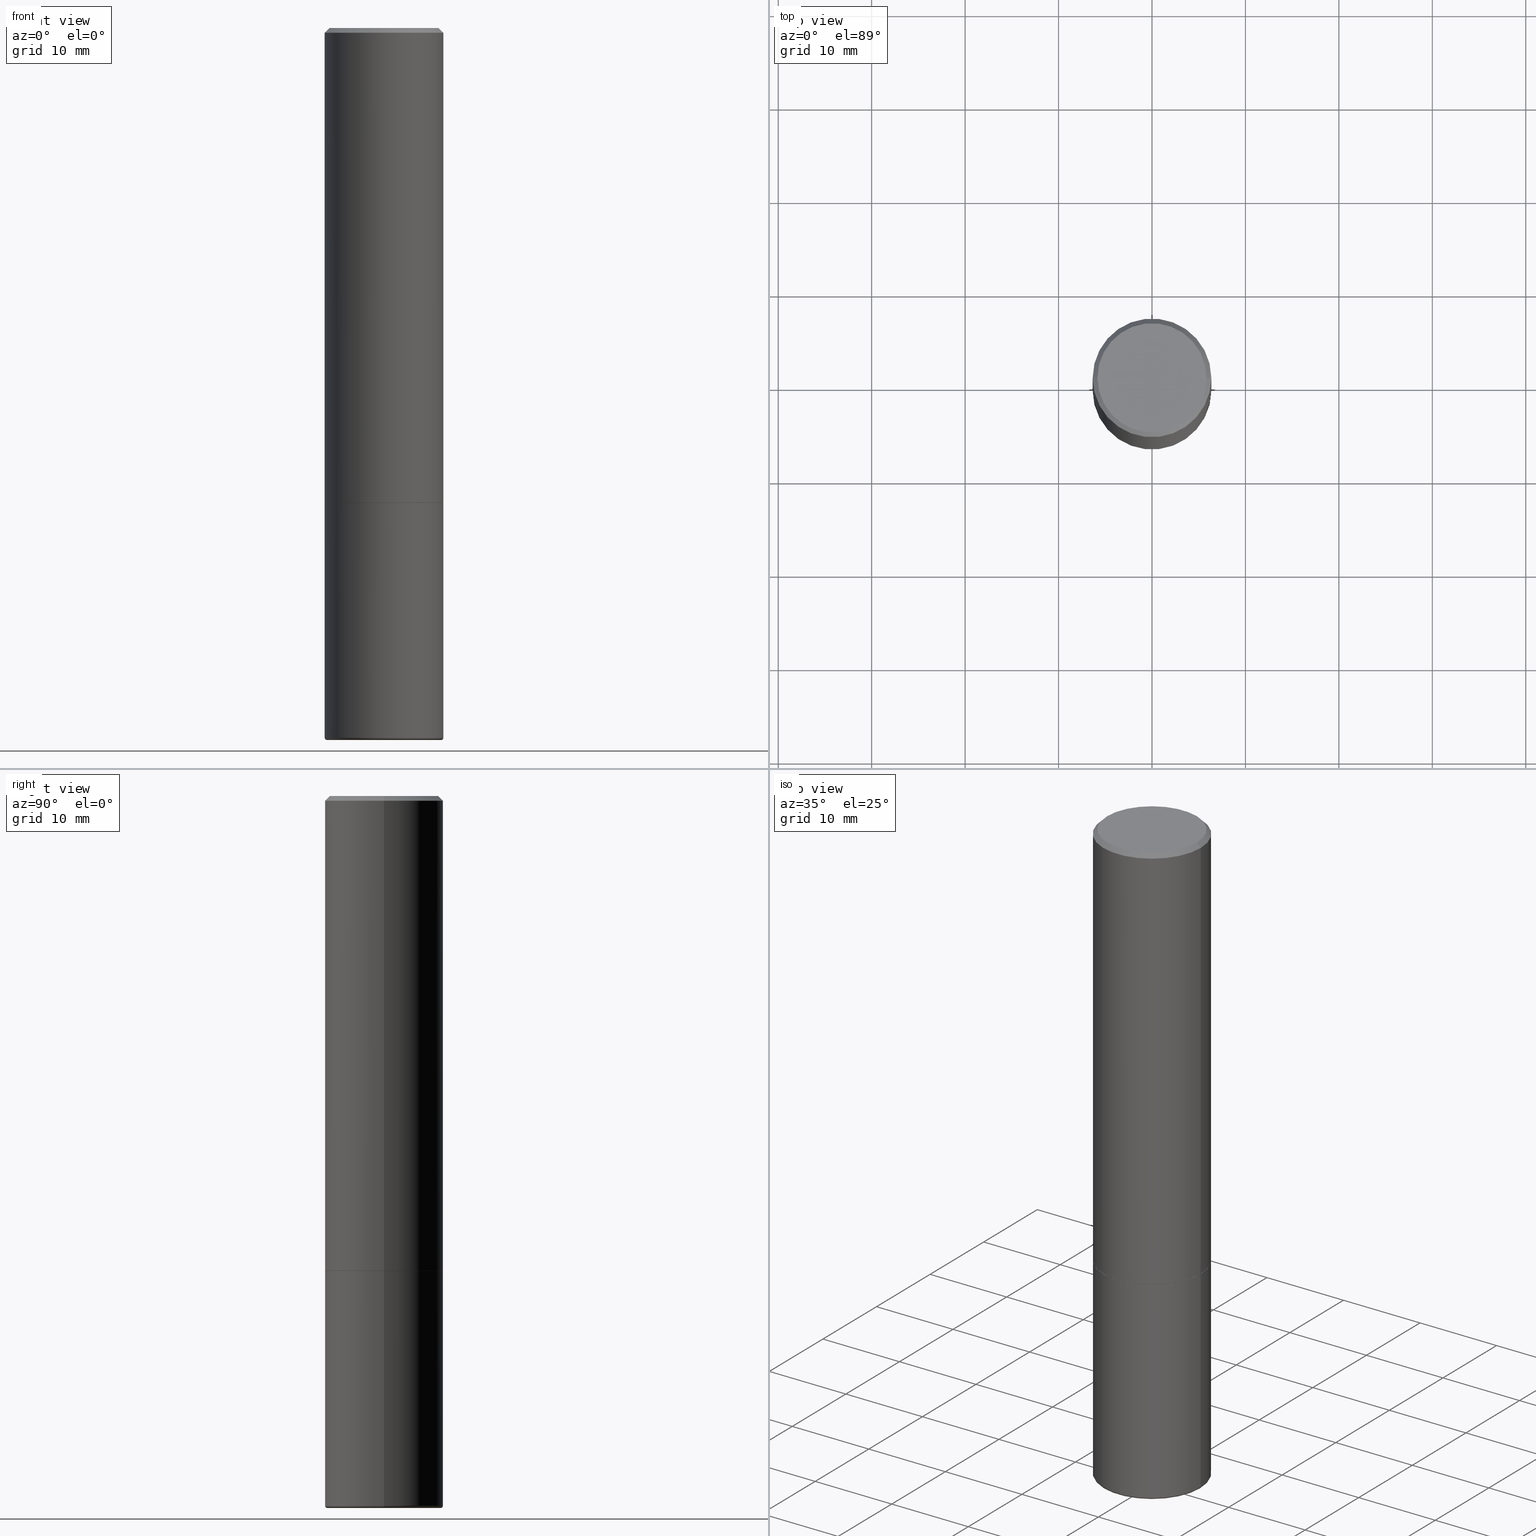
[diagram: canonical four-view strip — front | top / right | iso, engineering-drawing reading convention]
A machine part, canonical four-view strip (front | top / right | iso — engineering-drawing reading convention). The complete STEP part file that produces these views, byte-faithful:
ISO-10303-21;
HEADER;
FILE_DESCRIPTION (( 'STEP AP203' ),
    '1' );
FILE_NAME ('38834.STEP',
    '2024-03-03T15:50:34',
    ( '' ),
    ( '' ),
    'SwSTEP 2.0',
    'SolidWorks 2023',
    '' );
FILE_SCHEMA (( 'CONFIG_CONTROL_DESIGN' ));
ENDSEC;

DATA;
#1 = CC_DESIGN_PERSON_AND_ORGANIZATION_ASSIGNMENT ( #70, #63, ( #343 ) ) ;
#2 = DATE_AND_TIME ( #124, #281 ) ;
#3 = FACE_OUTER_BOUND ( 'NONE', #410, .T. ) ;
#4 = LINE ( 'NONE', #10, #14 ) ;
#5 = VECTOR ( 'NONE', #305, 39.37007874015748143 ) ;
#6 = AXIS2_PLACEMENT_3D ( 'NONE', #161, #290, #418 ) ;
#7 = PERSON_AND_ORGANIZATION ( #232, #409 ) ;
#8 = EDGE_CURVE ( 'NONE', #375, #157, #348, .T. ) ;
#9 = COORDINATED_UNIVERSAL_TIME_OFFSET ( 5, 0, .BEHIND. ) ;
#10 = CARTESIAN_POINT ( 'NONE',  ( -0.2489999999999999991, -5.213711265643642498E-15, -2.000000000000000444 ) ) ;
#11 = CYLINDRICAL_SURFACE ( 'NONE', #384, 0.2500000000000000000 ) ;
#12 = CARTESIAN_POINT ( 'NONE',  ( 0.2500000000000002220, -8.725211865769017202E-15, -1.999000000000000110 ) ) ;
#13 = DIRECTION ( 'NONE',  ( 1.000000000000000000, -6.982962677686267499E-15, 4.876176775795936353E-29 ) ) ;
#14 = VECTOR ( 'NONE', #349, 39.37007874015748143 ) ;
#15 = CARTESIAN_POINT ( 'NONE',  ( -0.2499999999999998890, -8.663172363740755817E-15, -2.990000000000000213 ) ) ;
#16 = EDGE_CURVE ( 'NONE', #192, #375, #76, .T. ) ;
#17 = DIRECTION ( 'NONE',  ( -2.445468806185136597E-29, 3.491481338843145583E-15, 1.000000000000000000 ) ) ;
#18 = CC_DESIGN_APPROVAL ( #368, ( #186 ) ) ;
#19 = CARTESIAN_POINT ( 'NONE',  ( -1.148236555768741665E-45, 1.639377487418492057E-31, 4.695363739110452099E-17 ) ) ;
#20 = ORIENTED_EDGE ( 'NONE', *, *, #397, .T. ) ;
#21 = DIRECTION ( 'NONE',  ( -2.445468806185136597E-29, 3.491481338843145583E-15, 1.000000000000000000 ) ) ;
#22 = ORIENTED_EDGE ( 'NONE', *, *, #330, .T. ) ;
#23 = EDGE_CURVE ( 'NONE', #229, #258, #369, .T. ) ;
#24 = DIRECTION ( 'NONE',  ( -2.445468806185136597E-29, 3.491481338843145583E-15, 1.000000000000000000 ) ) ;
#25 = AXIS2_PLACEMENT_3D ( 'NONE', #354, #413, #193 ) ;
#26 = ORIENTED_EDGE ( 'NONE', *, *, #113, .T. ) ;
#27 = ORIENTED_EDGE ( 'NONE', *, *, #118, .F. ) ;
#28 = VERTEX_POINT ( 'NONE', #170 ) ;
#29 = ORIENTED_EDGE ( 'NONE', *, *, #330, .F. ) ;
#30 = EDGE_CURVE ( 'NONE', #229, #54, #101, .T. ) ;
#31 = VECTOR ( 'NONE', #238, 39.37007874015748143 ) ;
#32 = AXIS2_PLACEMENT_3D ( 'NONE', #138, #143, #236 ) ;
#33 = DIRECTION ( 'NONE',  ( 2.438088387897960049E-29, -3.491481338843145188E-15, -1.000000000000000000 ) ) ;
#34 = DIRECTION ( 'NONE',  ( 1.000000000000000000, -6.982962677686266711E-15, 0.000000000000000000 ) ) ;
#35 = EDGE_CURVE ( 'NONE', #288, #168, #4, .T. ) ;
#36 = APPROVAL_DATE_TIME ( #100, #91 ) ;
#37 = DIRECTION ( 'NONE',  ( -2.438088387897960049E-29, 3.491481338843145188E-15, 1.000000000000000000 ) ) ;
#38 = CONICAL_SURFACE ( 'NONE', #333, 0.2500000000000000000, 0.7853981633974472798 ) ;
#39 = CC_DESIGN_APPROVAL ( #91, ( #343 ) ) ;
#40 = CARTESIAN_POINT ( 'NONE',  ( -0.2500000000000001110, 1.776356839400251254E-15, -1.229733772563727146E-29 ) ) ;
#41 = DIRECTION ( 'NONE',  ( -2.445468806185136597E-29, 3.491481338843145583E-15, 1.000000000000000000 ) ) ;
#42 = DIRECTION ( 'NONE',  ( -2.445468806185136597E-29, 3.491481338843145583E-15, 1.000000000000000000 ) ) ;
#43 = EDGE_CURVE ( 'NONE', #54, #225, #391, .T. ) ;
#44 = AXIS2_PLACEMENT_3D ( 'NONE', #199, #363, #337 ) ;
#45 = APPROVAL_PERSON_ORGANIZATION ( #389, #368, #292 ) ;
#46 =( CONVERSION_BASED_UNIT ( 'INCH', #77 ) LENGTH_UNIT ( ) NAMED_UNIT ( #166 ) );
#47 = DIRECTION ( 'NONE',  ( -2.445468806185136597E-29, 3.491481338843145583E-15, 1.000000000000000000 ) ) ;
#48 = DIRECTION ( 'NONE',  ( 1.000000000000000000, -6.982962677686266711E-15, 0.000000000000000000 ) ) ;
#49 = CARTESIAN_POINT ( 'NONE',  ( 4.890937612370287172E-31, -6.982962677686310098E-17, -0.02000000000000005593 ) ) ;
#50 = CARTESIAN_POINT ( 'NONE',  ( 0.000000000000000000, 0.000000000000000000, 0.000000000000000000 ) ) ;
#51 = AXIS2_PLACEMENT_3D ( 'NONE', #201, #327, #244 ) ;
#52 = DIRECTION ( 'NONE',  ( -2.445468806185136877E-29, 3.491481338843145188E-15, 1.000000000000000000 ) ) ;
#53 = EDGE_CURVE ( 'NONE', #28, #157, #318, .T. ) ;
#54 = VERTEX_POINT ( 'NONE', #194 ) ;
#55 = EDGE_LOOP ( 'NONE', ( #116, #332 ) ) ;
#56 = AXIS2_PLACEMENT_3D ( 'NONE', #374, #115, #312 ) ;
#57 = VERTEX_POINT ( 'NONE', #12 ) ;
#58 = DIRECTION ( 'NONE',  ( 1.000000000000000000, -6.982962677686266711E-15, 0.000000000000000000 ) ) ;
#59 = ORIENTED_EDGE ( 'NONE', *, *, #277, .T. ) ;
#60 = APPROVAL_STATUS ( 'not_yet_approved' ) ;
#61 = EDGE_LOOP ( 'NONE', ( #285, #224, #22, #381 ) ) ;
#62 = PLANE ( 'NONE',  #275 ) ;
#63 = PERSON_AND_ORGANIZATION_ROLE ( 'classification_officer' ) ;
#64 = CIRCLE ( 'NONE', #151, 0.2500000000000002220 ) ;
#65 = CALENDAR_DATE ( 2024, 3, 3 ) ;
#66 = LINE ( 'NONE', #239, #96 ) ;
#67 = ORIENTED_EDGE ( 'NONE', *, *, #35, .F. ) ;
#68 = EDGE_CURVE ( 'NONE', #168, #225, #94, .T. ) ;
#69 = DIRECTION ( 'NONE',  ( 2.445468806185136597E-29, -3.491481338843145583E-15, -1.000000000000000000 ) ) ;
#70 = PERSON_AND_ORGANIZATION ( #232, #409 ) ;
#71 = AXIS2_PLACEMENT_3D ( 'NONE', #49, #141, #73 ) ;
#72 = APPROVAL_PERSON_ORGANIZATION ( #7, #91, #134 ) ;
#73 = DIRECTION ( 'NONE',  ( 1.000000000000000000, -6.982962677686266711E-15, 0.000000000000000000 ) ) ;
#74 = CC_DESIGN_PERSON_AND_ORGANIZATION_ASSIGNMENT ( #334, #362, ( #139 ) ) ;
#75 = DIRECTION ( 'NONE',  ( 1.000000000000000000, -6.982962677686269077E-15, 4.883557194083114022E-29 ) ) ;
#76 = CIRCLE ( 'NONE', #51, 0.009999999999999790307 ) ;
#77 = LENGTH_MEASURE_WITH_UNIT ( LENGTH_MEASURE( 0.02539999999999999897 ), #248 );
#78 = ADVANCED_FACE ( 'NONE', ( #3 ), #307, .T. ) ;
#79 = DIRECTION ( 'NONE',  ( 1.000000000000000000, -6.982962677686266711E-15, 0.000000000000000000 ) ) ;
#80 = LOCAL_TIME ( 10, 50, 34.00000000000000000, #169 ) ;
#81 = UNCERTAINTY_MEASURE_WITH_UNIT (LENGTH_MEASURE( 1.000000000000000082E-05 ), #46, 'distance_accuracy_value', 'NONE');
#82 = ORIENTED_EDGE ( 'NONE', *, *, #155, .T. ) ;
#83 = CARTESIAN_POINT ( 'NONE',  ( -1.148236555768741665E-45, 1.639377487418492057E-31, 4.695363739110452099E-17 ) ) ;
#84 = FACE_OUTER_BOUND ( 'NONE', #351, .T. ) ;
#85 = ADVANCED_FACE ( 'NONE', ( #228 ), #176, .F. ) ;
#86 = MECHANICAL_CONTEXT ( 'NONE', #372, 'mechanical' ) ;
#87 = ORIENTED_EDGE ( 'NONE', *, *, #189, .F. ) ;
#88 = DIRECTION ( 'NONE',  ( 0.7071067811866078578, -2.468850131082888544E-15, 0.7071067811864871766 ) ) ;
#89 = PERSON_AND_ORGANIZATION_ROLE ( 'design_owner' ) ;
#90 = DIRECTION ( 'NONE',  ( -2.445468806185136597E-29, 3.491481338843145583E-15, 1.000000000000000000 ) ) ;
#91 = APPROVAL ( #60, 'UNSPECIFIED' ) ;
#92 = DIRECTION ( 'NONE',  ( -2.445468806185136597E-29, 3.491481338843145583E-15, 1.000000000000000000 ) ) ;
#93 = DIRECTION ( 'NONE',  ( 1.000000000000000000, -6.982962677686262766E-15, 0.000000000000000000 ) ) ;
#94 = LINE ( 'NONE', #40, #5 ) ;
#95 = ORIENTED_EDGE ( 'NONE', *, *, #53, .F. ) ;
#96 = VECTOR ( 'NONE', #174, 39.37007874015748143 ) ;
#97 = APPROVAL_PERSON_ORGANIZATION ( #291, #306, #230 ) ;
#98 = APPLICATION_CONTEXT ( 'configuration controlled 3d designs of mechanical parts and assemblies' ) ;
#99 = DATE_AND_TIME ( #65, #319 ) ;
#100 = DATE_AND_TIME ( #395, #133 ) ;
#101 = LINE ( 'NONE', #262, #31 ) ;
#102 = COORDINATED_UNIVERSAL_TIME_OFFSET ( 5, 0, .BEHIND. ) ;
#103 = PLANE ( 'NONE',  #361 ) ;
#104 = AXIS2_PLACEMENT_3D ( 'NONE', #245, #47, #79 ) ;
#105 = ADVANCED_FACE ( 'NONE', ( #331 ), #103, .F. ) ;
#106 = DIRECTION ( 'NONE',  ( 2.438088387897960049E-29, -3.491481338843145188E-15, -1.000000000000000000 ) ) ;
#107 = FACE_OUTER_BOUND ( 'NONE', #386, .T. ) ;
#108 = EDGE_CURVE ( 'NONE', #375, #317, #310, .T. ) ;
#109 = DIRECTION ( 'NONE',  ( -2.445468806185136597E-29, 3.491481338843145583E-15, 1.000000000000000000 ) ) ;
#110 = VECTOR ( 'NONE', #159, 39.37007874015748143 ) ;
#111 = DIRECTION ( 'NONE',  ( -2.445468806185136877E-29, 3.491481338843145188E-15, 1.000000000000000000 ) ) ;
#112 = AXIS2_PLACEMENT_3D ( 'NONE', #328, #69, #269 ) ;
#113 = EDGE_CURVE ( 'NONE', #258, #225, #66, .T. ) ;
#114 = AXIS2_PLACEMENT_3D ( 'NONE', #408, #153, #13 ) ;
#115 = DIRECTION ( 'NONE',  ( 0.000000000000000000, 0.000000000000000000, 1.000000000000000000 ) ) ;
#116 = ORIENTED_EDGE ( 'NONE', *, *, #189, .T. ) ;
#117 = CARTESIAN_POINT ( 'NONE',  ( 4.890937612370273754E-29, -6.982962677686291954E-15, -2.000000000000000444 ) ) ;
#118 = EDGE_CURVE ( 'NONE', #303, #317, #246, .T. ) ;
#119 = MANIFOLD_SOLID_BREP ( 'Body-Move/Copy2[2]', #197 ) ;
#120 = CARTESIAN_POINT ( 'NONE',  ( -0.2400000000000000466, -8.716156907222976683E-15, -2.999999999999999556 ) ) ;
#121 = AXIS2_PLACEMENT_3D ( 'NONE', #313, #21, #339 ) ;
#122 = EDGE_LOOP ( 'NONE', ( #253, #160 ) ) ;
#123 = ORIENTED_EDGE ( 'NONE', *, *, #234, .T. ) ;
#124 = CALENDAR_DATE ( 2024, 3, 3 ) ;
#125 = EDGE_LOOP ( 'NONE', ( #417, #87, #26, #82 ) ) ;
#126 = EDGE_LOOP ( 'NONE', ( #355, #280, #286, #287 ) ) ;
#127 = APPROVAL_DATE_TIME ( #2, #368 ) ;
#128 = DIRECTION ( 'NONE',  ( -1.000000000000000000, 6.982962677686266711E-15, 0.000000000000000000 ) ) ;
#129 = PERSON_AND_ORGANIZATION ( #232, #409 ) ;
#130 = ADVANCED_FACE ( 'NONE', ( #336 ), #38, .T. ) ;
#131 = CARTESIAN_POINT ( 'NONE',  ( 4.890937612370273754E-29, -6.982962677686291954E-15, -2.000000000000000444 ) ) ;
#132 = AXIS2_PLACEMENT_3D ( 'NONE', #117, #90, #223 ) ;
#133 = LOCAL_TIME ( 10, 50, 34.00000000000000000, #261 ) ;
#134 = APPROVAL_ROLE ( '' ) ;
#135 = MANIFOLD_SOLID_BREP ( 'Body-Move/Copy2[1]', #190 ) ;
#136 = CALENDAR_DATE ( 2024, 3, 3 ) ;
#137 = ADVANCED_FACE ( 'NONE', ( #293 ), #11, .T. ) ;
#138 = CARTESIAN_POINT ( 'NONE',  ( 4.890937612370273754E-29, -6.982962677686291954E-15, -2.000000000000000444 ) ) ;
#139 = PRODUCT_DEFINITION_FORMATION_WITH_SPECIFIED_SOURCE ( 'ANY', '', #235, .NOT_KNOWN. ) ;
#140 = ADVANCED_FACE ( 'NONE', ( #390 ), #256, .T. ) ;
#141 = DIRECTION ( 'NONE',  ( -2.445468806185136597E-29, 3.491481338843145583E-15, 1.000000000000000000 ) ) ;
#142 = CARTESIAN_POINT ( 'NONE',  ( 1.210550456377282398E-28, -3.644824032368776532E-15, -2.999999999999999556 ) ) ;
#143 = DIRECTION ( 'NONE',  ( 2.438088387897960049E-29, -3.491481338843145188E-15, -1.000000000000000000 ) ) ;
#144 = VECTOR ( 'NONE', #111, 39.37007874015748143 ) ;
#145 = DIRECTION ( 'NONE',  ( -2.445468806185136597E-29, 3.491481338843145583E-15, 1.000000000000000000 ) ) ;
#146 = CARTESIAN_POINT ( 'NONE',  ( 0.2500000000000001110, -1.745740669421567664E-15, 1.219044193948984649E-29 ) ) ;
#147 = CYLINDRICAL_SURFACE ( 'NONE', #114, 0.2500000000000001110 ) ;
#148 = EDGE_CURVE ( 'NONE', #57, #168, #207, .T. ) ;
#149 = LINE ( 'NONE', #158, #400 ) ;
#150 = ORIENTED_EDGE ( 'NONE', *, *, #364, .T. ) ;
#151 = AXIS2_PLACEMENT_3D ( 'NONE', #252, #218, #322 ) ;
#152 = DIRECTION ( 'NONE',  ( 1.000000000000000000, -6.982962677686266711E-15, 0.000000000000000000 ) ) ;
#153 = DIRECTION ( 'NONE',  ( -2.445468806185136597E-29, 3.491481338843145583E-15, 1.000000000000000000 ) ) ;
#154 = ORIENTED_EDGE ( 'NONE', *, *, #108, .F. ) ;
#155 = EDGE_CURVE ( 'NONE', #225, #54, #392, .T. ) ;
#156 = DIRECTION ( 'NONE',  ( -2.445468806185136597E-29, 3.491481338843145583E-15, 1.000000000000000000 ) ) ;
#157 = VERTEX_POINT ( 'NONE', #402 ) ;
#158 = CARTESIAN_POINT ( 'NONE',  ( 0.2489999999999999991, -8.721720384430172617E-15, -2.000000000000000444 ) ) ;
#159 = DIRECTION ( 'NONE',  ( -2.445468806185136877E-29, 3.491481338843145188E-15, 1.000000000000000000 ) ) ;
#160 = ORIENTED_EDGE ( 'NONE', *, *, #364, .F. ) ;
#161 = CARTESIAN_POINT ( 'NONE',  ( 7.311951730493558245E-29, -1.043952920314100628E-14, -2.990000000000000213 ) ) ;
#162 = CONICAL_SURFACE ( 'NONE', #104, 0.2489999999999999991, 0.7853981633975336552 ) ;
#163 = APPLICATION_PROTOCOL_DEFINITION ( 'international standard', 'config_control_design', 1994, #98 ) ;
#164 = CARTESIAN_POINT ( 'NONE',  ( 4.890937612370287172E-31, -6.982962677686310098E-17, -0.02000000000000005593 ) ) ;
#165 = ADVANCED_FACE ( 'NONE', ( #107 ), #162, .T. ) ;
#166 = DIMENSIONAL_EXPONENTS ( 1.000000000000000000, 0.000000000000000000, 0.000000000000000000, 0.000000000000000000, 0.000000000000000000, 0.000000000000000000, 0.000000000000000000 ) ;
#167 = CARTESIAN_POINT ( 'NONE',  ( 4.888492143564088712E-29, -6.979471196347448158E-15, -1.999000000000000110 ) ) ;
#168 = VERTEX_POINT ( 'NONE', #179 ) ;
#169 = COORDINATED_UNIVERSAL_TIME_OFFSET ( 5, 0, .BEHIND. ) ;
#170 = CARTESIAN_POINT ( 'NONE',  ( 0.2500000000000000000, -8.728703347107858632E-15, -2.000000000000000444 ) ) ;
#171 = AXIS2_PLACEMENT_3D ( 'NONE', #83, #24, #298 ) ;
#172 = CIRCLE ( 'NONE', #324, 0.2489999999999999991 ) ;
#173 = PERSON_AND_ORGANIZATION_ROLE ( 'creator' ) ;
#174 = DIRECTION ( 'NONE',  ( -0.7071067811865467956, 2.468850131082249172E-15, -0.7071067811865482389 ) ) ;
#175 = DIRECTION ( 'NONE',  ( 1.000000000000000000, -6.982962677686266711E-15, 0.000000000000000000 ) ) ;
#176 = PLANE ( 'NONE',  #220 ) ;
#177 = CARTESIAN_POINT ( 'NONE',  ( -0.2500000000000000000, 1.776356839400250465E-15, -1.229733772563726445E-29 ) ) ;
#178 = FACE_OUTER_BOUND ( 'NONE', #61, .T. ) ;
#179 = CARTESIAN_POINT ( 'NONE',  ( -0.2500000000000002220, -1.748293572161901516E-15, -1.999000000000000110 ) ) ;
#180 = DESIGN_CONTEXT ( 'detailed design', #98, 'design' ) ;
#181 = CYLINDRICAL_SURFACE ( 'NONE', #121, 0.2500000000000000000 ) ;
#182 = CIRCLE ( 'NONE', #231, 0.2400000000000000466 ) ;
#183 = PRODUCT_DEFINITION_SHAPE ( 'NONE', 'NONE',  #186 ) ;
#184 = CYLINDRICAL_SURFACE ( 'NONE', #405, 0.2500000000000001110 ) ;
#185 = DIRECTION ( 'NONE',  ( 1.000000000000000000, -6.982962677686268288E-15, 0.000000000000000000 ) ) ;
#186 = PRODUCT_DEFINITION ( 'UNKNOWN', '', #139, #180 ) ;
#187 = ORIENTED_EDGE ( 'NONE', *, *, #16, .T. ) ;
#188 = EDGE_LOOP ( 'NONE', ( #59, #352, #95, #29 ) ) ;
#189 = EDGE_CURVE ( 'NONE', #258, #229, #376, .T. ) ;
#190 = CLOSED_SHELL ( 'NONE', ( #137, #268, #344, #380, #314, #282 ) ) ;
#191 = FACE_OUTER_BOUND ( 'NONE', #126, .T. ) ;
#192 = VERTEX_POINT ( 'NONE', #120 ) ;
#193 = DIRECTION ( 'NONE',  ( 1.000000000000000000, -6.982962677686266711E-15, 0.000000000000000000 ) ) ;
#194 = CARTESIAN_POINT ( 'NONE',  ( 0.2500000000000000000, -1.784954126219746189E-15, -0.02000000000000005593 ) ) ;
#195 = CARTESIAN_POINT ( 'NONE',  ( -0.2299999999999999267, 1.640996229256272519E-15, 4.695363739109317495E-17 ) ) ;
#196 = EDGE_LOOP ( 'NONE', ( #302, #187, #357, #27 ) ) ;
#197 = CLOSED_SHELL ( 'NONE', ( #165, #403, #78, #130, #338, #140, #85, #105 ) ) ;
#198 = APPROVAL_STATUS ( 'not_yet_approved' ) ;
#199 = CARTESIAN_POINT ( 'NONE',  ( 7.311951730493558245E-29, -1.043952920314100628E-14, -2.990000000000000213 ) ) ;
#200 = ORIENTED_EDGE ( 'NONE', *, *, #30, .T. ) ;
#201 = CARTESIAN_POINT ( 'NONE',  ( -0.2399999999999999911, -8.734226637316765899E-15, -2.990000000000000213 ) ) ;
#202 = DATE_TIME_ROLE ( 'classification_date' ) ;
#203 = DIRECTION ( 'NONE',  ( -2.445468806185136597E-29, 3.491481338843145583E-15, 1.000000000000000000 ) ) ;
#204 = CARTESIAN_POINT ( 'NONE',  ( 4.890937612370273754E-29, -6.982962677686291954E-15, -2.000000000000000444 ) ) ;
#205 = AXIS2_PLACEMENT_3D ( 'NONE', #214, #42, #75 ) ;
#206 = DIRECTION ( 'NONE',  ( 1.000000000000000000, -6.982962677686284854E-15, 0.000000000000000000 ) ) ;
#207 = CIRCLE ( 'NONE', #247, 0.2500000000000002220 ) ;
#208 = ORIENTED_EDGE ( 'NONE', *, *, #53, .T. ) ;
#209 = TOROIDAL_SURFACE ( 'NONE', #205, 0.2399999999999999911, 0.009999999999999807654 ) ;
#210 = FACE_OUTER_BOUND ( 'NONE', #250, .T. ) ;
#211 = LINE ( 'NONE', #222, #110 ) ;
#212 = EDGE_CURVE ( 'NONE', #192, #303, #182, .T. ) ;
#213 = LOCAL_TIME ( 10, 50, 34.00000000000000000, #365 ) ;
#214 = CARTESIAN_POINT ( 'NONE',  ( 7.311951730493558245E-29, -1.043952920314100628E-14, -2.990000000000000213 ) ) ;
#215 = EDGE_CURVE ( 'NONE', #303, #192, #370, .T. ) ;
#216 = EDGE_LOOP ( 'NONE', ( #67, #150, #123, #251 ) ) ;
#217 = CC_DESIGN_PERSON_AND_ORGANIZATION_ASSIGNMENT ( #297, #398, ( #139 ) ) ;
#218 = DIRECTION ( 'NONE',  ( -2.445468806185136597E-29, 3.491481338843145583E-15, 1.000000000000000000 ) ) ;
#219 = ORIENTED_EDGE ( 'NONE', *, *, #212, .F. ) ;
#220 = AXIS2_PLACEMENT_3D ( 'NONE', #204, #37, #325 ) ;
#221 = CARTESIAN_POINT ( 'NONE',  ( 4.890937612370273754E-29, -6.982962677686291954E-15, -2.000000000000000444 ) ) ;
#222 = CARTESIAN_POINT ( 'NONE',  ( 0.2500000000000000000, -1.745740669421566678E-15, 1.219044193948983948E-29 ) ) ;
#223 = DIRECTION ( 'NONE',  ( 1.000000000000000000, -6.982962677686266711E-15, 0.000000000000000000 ) ) ;
#224 = ORIENTED_EDGE ( 'NONE', *, *, #108, .T. ) ;
#225 = VERTEX_POINT ( 'NONE', #382 ) ;
#226 = FACE_OUTER_BOUND ( 'NONE', #416, .T. ) ;
#227 = EDGE_CURVE ( 'NONE', #168, #57, #64, .T. ) ;
#228 = FACE_OUTER_BOUND ( 'NONE', #122, .T. ) ;
#229 = VERTEX_POINT ( 'NONE', #350 ) ;
#230 = APPROVAL_ROLE ( '' ) ;
#231 = AXIS2_PLACEMENT_3D ( 'NONE', #346, #92, #152 ) ;
#232 = PERSON ( 'UNSPECIFIED', 'UNSPECIFIED', 'UNSPECIFIED', ('UNSPECIFIED'), ('UNSPECIFIED'), ('UNSPECIFIED') ) ;
#233 = CARTESIAN_POINT ( 'NONE',  ( 1.606081415867840870E-15, 0.2299999999999999267, -7.795638892383710465E-16 ) ) ;
#234 = EDGE_CURVE ( 'NONE', #378, #57, #149, .T. ) ;
#235 = PRODUCT ( '38834', '38834', '', ( #86 ) ) ;
#236 = DIRECTION ( 'NONE',  ( -1.000000000000000000, 6.982962677686265922E-15, -4.876176775795935793E-29 ) ) ;
#237 = CALENDAR_DATE ( 2024, 3, 3 ) ;
#238 = DIRECTION ( 'NONE',  ( 0.7071067811865467956, -7.319954787623254468E-15, -0.7071067811865482389 ) ) ;
#239 = CARTESIAN_POINT ( 'NONE',  ( -0.2500000000000000000, 1.675911042644703577E-15, -0.02000000000000005593 ) ) ;
#240 =( NAMED_UNIT ( * ) SI_UNIT ( $, .STERADIAN. ) SOLID_ANGLE_UNIT ( ) );
#241 = ORIENTED_EDGE ( 'NONE', *, *, #113, .F. ) ;
#242 =( GEOMETRIC_REPRESENTATION_CONTEXT ( 3 ) GLOBAL_UNCERTAINTY_ASSIGNED_CONTEXT ( ( #81 ) ) GLOBAL_UNIT_ASSIGNED_CONTEXT ( ( #46, #315, #240 ) ) REPRESENTATION_CONTEXT ( 'NONE', 'WORKASPACE' ) );
#243 = EDGE_CURVE ( 'NONE', #157, #28, #289, .T. ) ;
#244 = DIRECTION ( 'NONE',  ( -1.000000000000000000, 7.105427357600978193E-15, 0.000000000000000000 ) ) ;
#245 = CARTESIAN_POINT ( 'NONE',  ( 4.890937612370273754E-29, -6.982962677686291954E-15, -2.000000000000000444 ) ) ;
#246 = CIRCLE ( 'NONE', #342, 0.009999999999999790307 ) ;
#247 = AXIS2_PLACEMENT_3D ( 'NONE', #167, #17, #185 ) ;
#248 =( LENGTH_UNIT ( ) NAMED_UNIT ( * ) SI_UNIT ( $, .METRE. ) );
#249 = AXIS2_PLACEMENT_3D ( 'NONE', #19, #145, #311 ) ;
#250 = EDGE_LOOP ( 'NONE', ( #208, #377 ) ) ;
#251 = ORIENTED_EDGE ( 'NONE', *, *, #227, .F. ) ;
#252 = CARTESIAN_POINT ( 'NONE',  ( 4.888492143564088712E-29, -6.979471196347448158E-15, -1.999000000000000110 ) ) ;
#253 = ORIENTED_EDGE ( 'NONE', *, *, #397, .F. ) ;
#254 = DIRECTION ( 'NONE',  ( 1.000000000000000000, -6.982962677686267499E-15, 4.876176775795936353E-29 ) ) ;
#255 = AXIS2_PLACEMENT_3D ( 'NONE', #404, #367, #48 ) ;
#256 = CONICAL_SURFACE ( 'NONE', #366, 0.2489999999999999991, 0.7853981633975336552 ) ;
#257 = LINE ( 'NONE', #146, #144 ) ;
#258 = VERTEX_POINT ( 'NONE', #195 ) ;
#259 = EDGE_CURVE ( 'NONE', #57, #54, #257, .T. ) ;
#260 = FACE_OUTER_BOUND ( 'NONE', #196, .T. ) ;
#261 = COORDINATED_UNIVERSAL_TIME_OFFSET ( 5, 0, .BEHIND. ) ;
#262 = CARTESIAN_POINT ( 'NONE',  ( 0.2500000000000000000, -1.784954126219746189E-15, -0.02000000000000005593 ) ) ;
#263 = ORIENTED_EDGE ( 'NONE', *, *, #43, .T. ) ;
#264 = APPROVAL_STATUS ( 'not_yet_approved' ) ;
#265 = DIRECTION ( 'NONE',  ( 1.000000000000000000, -6.982962677686266711E-15, 4.876176775795935793E-29 ) ) ;
#266 = ORIENTED_EDGE ( 'NONE', *, *, #148, .F. ) ;
#267 = TOROIDAL_SURFACE ( 'NONE', #6, 0.2399999999999999911, 0.009999999999999807654 ) ;
#268 = ADVANCED_FACE ( 'NONE', ( #260 ), #267, .T. ) ;
#269 = DIRECTION ( 'NONE',  ( -1.000000000000000000, 6.982962677686266711E-15, 0.000000000000000000 ) ) ;
#270 = ORIENTED_EDGE ( 'NONE', *, *, #212, .T. ) ;
#271 = CARTESIAN_POINT ( 'NONE',  ( 4.890937612370273754E-29, -6.982962677686291954E-15, -2.000000000000000444 ) ) ;
#272 = DATE_TIME_ROLE ( 'creation_date' ) ;
#273 = CARTESIAN_POINT ( 'NONE',  ( 0.000000000000000000, 0.000000000000000000, 0.000000000000000000 ) ) ;
#274 = AXIS2_PLACEMENT_3D ( 'NONE', #316, #156, #284 ) ;
#275 = AXIS2_PLACEMENT_3D ( 'NONE', #142, #106, #279 ) ;
#276 = PRODUCT_RELATED_PRODUCT_CATEGORY ( 'detail', '', ( #235 ) ) ;
#277 = EDGE_CURVE ( 'NONE', #317, #375, #385, .T. ) ;
#278 = VECTOR ( 'NONE', #52, 39.37007874015748143 ) ;
#279 = DIRECTION ( 'NONE',  ( -1.000000000000000000, 6.982962677686265922E-15, -4.876176775795935793E-29 ) ) ;
#280 = ORIENTED_EDGE ( 'NONE', *, *, #68, .T. ) ;
#281 = LOCAL_TIME ( 10, 50, 34.00000000000000000, #9 ) ;
#282 = ADVANCED_FACE ( 'NONE', ( #226 ), #62, .T. ) ;
#283 = ORIENTED_EDGE ( 'NONE', *, *, #118, .T. ) ;
#284 = DIRECTION ( 'NONE',  ( 1.000000000000000000, -6.982962677686266711E-15, 0.000000000000000000 ) ) ;
#285 = ORIENTED_EDGE ( 'NONE', *, *, #8, .F. ) ;
#286 = ORIENTED_EDGE ( 'NONE', *, *, #43, .F. ) ;
#287 = ORIENTED_EDGE ( 'NONE', *, *, #259, .F. ) ;
#288 = VERTEX_POINT ( 'NONE', #309 ) ;
#289 = CIRCLE ( 'NONE', #308, 0.2500000000000000000 ) ;
#290 = DIRECTION ( 'NONE',  ( -2.445468806185136597E-29, 3.491481338843145583E-15, 1.000000000000000000 ) ) ;
#291 = PERSON_AND_ORGANIZATION ( #232, #409 ) ;
#292 = APPROVAL_ROLE ( '' ) ;
#293 = FACE_OUTER_BOUND ( 'NONE', #188, .T. ) ;
#294 = ORIENTED_EDGE ( 'NONE', *, *, #259, .T. ) ;
#295 = ORIENTED_EDGE ( 'NONE', *, *, #23, .F. ) ;
#296 = CC_DESIGN_DATE_AND_TIME_ASSIGNMENT ( #299, #272, ( #186 ) ) ;
#297 = PERSON_AND_ORGANIZATION ( #232, #409 ) ;
#298 = DIRECTION ( 'NONE',  ( 1.000000000000000000, -6.982962677686267499E-15, 4.875813741439101456E-29 ) ) ;
#299 = DATE_AND_TIME ( #136, #80 ) ;
#300 = CC_DESIGN_SECURITY_CLASSIFICATION ( #343, ( #139 ) ) ;
#301 = DIRECTION ( 'NONE',  ( -1.000000000000000000, 6.982962677686265922E-15, -4.876176775795935793E-29 ) ) ;
#302 = ORIENTED_EDGE ( 'NONE', *, *, #215, .T. ) ;
#303 = VERTEX_POINT ( 'NONE', #371 ) ;
#304 = DIRECTION ( 'NONE',  ( 2.445468806185136597E-29, -3.491481338843145583E-15, -1.000000000000000000 ) ) ;
#305 = DIRECTION ( 'NONE',  ( -2.445468806185136877E-29, 3.491481338843145188E-15, 1.000000000000000000 ) ) ;
#306 = APPROVAL ( #264, 'UNSPECIFIED' ) ;
#307 = CONICAL_SURFACE ( 'NONE', #112, 0.2500000000000000000, 0.7853981633974472798 ) ;
#308 = AXIS2_PLACEMENT_3D ( 'NONE', #221, #415, #58 ) ;
#309 = CARTESIAN_POINT ( 'NONE',  ( -0.2489999999999999991, -5.208412811295419307E-15, -2.000000000000000444 ) ) ;
#310 = CIRCLE ( 'NONE', #44, 0.2500000000000000000 ) ;
#311 = DIRECTION ( 'NONE',  ( 1.000000000000000000, -6.982962677686267499E-15, 4.875813741439101456E-29 ) ) ;
#312 = DIRECTION ( 'NONE',  ( 1.000000000000000000, 0.000000000000000000, 0.000000000000000000 ) ) ;
#313 = CARTESIAN_POINT ( 'NONE',  ( 0.000000000000000000, 0.000000000000000000, 0.000000000000000000 ) ) ;
#314 = ADVANCED_FACE ( 'NONE', ( #406 ), #209, .T. ) ;
#315 =( NAMED_UNIT ( * ) PLANE_ANGLE_UNIT ( ) SI_UNIT ( $, .RADIAN. ) );
#316 = CARTESIAN_POINT ( 'NONE',  ( 4.890937612370287172E-31, -6.982962677686310098E-17, -0.02000000000000005593 ) ) ;
#317 = VERTEX_POINT ( 'NONE', #341 ) ;
#318 = CIRCLE ( 'NONE', #132, 0.2500000000000000000 ) ;
#319 = LOCAL_TIME ( 10, 50, 34.00000000000000000, #102 ) ;
#320 = CARTESIAN_POINT ( 'NONE',  ( 0.2489999999999999991, -8.721720384430172617E-15, -2.000000000000000444 ) ) ;
#321 = ORIENTED_EDGE ( 'NONE', *, *, #215, .F. ) ;
#322 = DIRECTION ( 'NONE',  ( 1.000000000000000000, -6.982962677686268288E-15, 0.000000000000000000 ) ) ;
#323 = SHAPE_DEFINITION_REPRESENTATION ( #183, #401 ) ;
#324 = AXIS2_PLACEMENT_3D ( 'NONE', #271, #41, #175 ) ;
#325 = DIRECTION ( 'NONE',  ( 1.000000000000000000, -6.982962677686265922E-15, 4.876176775795935793E-29 ) ) ;
#326 = ORIENTED_EDGE ( 'NONE', *, *, #35, .T. ) ;
#327 = DIRECTION ( 'NONE',  ( 7.105427357601001859E-15, 1.000000000000000000, -3.491481338843145583E-15 ) ) ;
#328 = CARTESIAN_POINT ( 'NONE',  ( 4.890937612370287172E-31, -6.982962677686310098E-17, -0.02000000000000005593 ) ) ;
#329 = ORIENTED_EDGE ( 'NONE', *, *, #227, .T. ) ;
#330 = EDGE_CURVE ( 'NONE', #317, #28, #211, .T. ) ;
#331 = FACE_OUTER_BOUND ( 'NONE', #55, .T. ) ;
#332 = ORIENTED_EDGE ( 'NONE', *, *, #23, .T. ) ;
#333 = AXIS2_PLACEMENT_3D ( 'NONE', #164, #304, #128 ) ;
#334 = PERSON_AND_ORGANIZATION ( #232, #409 ) ;
#335 = CIRCLE ( 'NONE', #255, 0.2489999999999999991 ) ;
#336 = FACE_OUTER_BOUND ( 'NONE', #125, .T. ) ;
#337 = DIRECTION ( 'NONE',  ( 1.000000000000000000, -6.982962677686262766E-15, 0.000000000000000000 ) ) ;
#338 = ADVANCED_FACE ( 'NONE', ( #84 ), #147, .T. ) ;
#339 = DIRECTION ( 'NONE',  ( 1.000000000000000000, -6.982962677686266711E-15, 4.876176775795935793E-29 ) ) ;
#340 = PLANE ( 'NONE',  #32 ) ;
#341 = CARTESIAN_POINT ( 'NONE',  ( 0.2499999999999998890, -1.218526987256257138E-14, -2.990000000000000213 ) ) ;
#342 = AXIS2_PLACEMENT_3D ( 'NONE', #360, #396, #206 ) ;
#343 = SECURITY_CLASSIFICATION ( '', '', #356 ) ;
#344 = ADVANCED_FACE ( 'NONE', ( #210 ), #340, .F. ) ;
#345 = AXIS2_PLACEMENT_3D ( 'NONE', #387, #359, #93 ) ;
#346 = CARTESIAN_POINT ( 'NONE',  ( 7.336406418555408669E-29, -1.047444401652943478E-14, -2.999999999999999556 ) ) ;
#347 = CC_DESIGN_DATE_AND_TIME_ASSIGNMENT ( #99, #202, ( #343 ) ) ;
#348 = LINE ( 'NONE', #177, #278 ) ;
#349 = DIRECTION ( 'NONE',  ( -0.7071067811866078578, 7.493145998870571886E-15, 0.7071067811864871766 ) ) ;
#350 = CARTESIAN_POINT ( 'NONE',  ( 0.2299999999999999267, -1.681434332853598617E-15, 4.695363739111602110E-17 ) ) ;
#351 = EDGE_LOOP ( 'NONE', ( #358, #329, #294, #412 ) ) ;
#352 = ORIENTED_EDGE ( 'NONE', *, *, #8, .T. ) ;
#353 = CC_DESIGN_APPROVAL ( #306, ( #139 ) ) ;
#354 = CARTESIAN_POINT ( 'NONE',  ( 7.336406418555408669E-29, -1.047444401652943478E-14, -2.999999999999999556 ) ) ;
#355 = ORIENTED_EDGE ( 'NONE', *, *, #148, .T. ) ;
#356 = SECURITY_CLASSIFICATION_LEVEL ( 'unclassified' ) ;
#357 = ORIENTED_EDGE ( 'NONE', *, *, #277, .F. ) ;
#358 = ORIENTED_EDGE ( 'NONE', *, *, #68, .F. ) ;
#359 = DIRECTION ( 'NONE',  ( -2.445468806185136597E-29, 3.491481338843145583E-15, 1.000000000000000000 ) ) ;
#360 = CARTESIAN_POINT ( 'NONE',  ( 0.2399999999999999911, -1.211544024578571124E-14, -2.990000000000000213 ) ) ;
#361 = AXIS2_PLACEMENT_3D ( 'NONE', #233, #33, #301 ) ;
#362 = PERSON_AND_ORGANIZATION_ROLE ( 'creator' ) ;
#363 = DIRECTION ( 'NONE',  ( -2.445468806185136597E-29, 3.491481338843145583E-15, 1.000000000000000000 ) ) ;
#364 = EDGE_CURVE ( 'NONE', #288, #378, #172, .T. ) ;
#365 = COORDINATED_UNIVERSAL_TIME_OFFSET ( 5, 0, .BEHIND. ) ;
#366 = AXIS2_PLACEMENT_3D ( 'NONE', #131, #203, #34 ) ;
#367 = DIRECTION ( 'NONE',  ( -2.445468806185136597E-29, 3.491481338843145583E-15, 1.000000000000000000 ) ) ;
#368 = APPROVAL ( #198, 'UNSPECIFIED' ) ;
#369 = CIRCLE ( 'NONE', #171, 0.2299999999999999267 ) ;
#370 = CIRCLE ( 'NONE', #25, 0.2400000000000000466 ) ;
#371 = CARTESIAN_POINT ( 'NONE',  ( 0.2400000000000000466, -1.215035505917413973E-14, -2.999999999999999556 ) ) ;
#372 = APPLICATION_CONTEXT ( 'configuration controlled 3d designs of mechanical parts and assemblies' ) ;
#373 = CC_DESIGN_PERSON_AND_ORGANIZATION_ASSIGNMENT ( #129, #173, ( #186 ) ) ;
#374 = CARTESIAN_POINT ( 'NONE',  ( 0.000000000000000000, 0.000000000000000000, 0.000000000000000000 ) ) ;
#375 = VERTEX_POINT ( 'NONE', #15 ) ;
#376 = CIRCLE ( 'NONE', #249, 0.2299999999999999267 ) ;
#377 = ORIENTED_EDGE ( 'NONE', *, *, #243, .T. ) ;
#378 = VERTEX_POINT ( 'NONE', #320 ) ;
#379 = EDGE_LOOP ( 'NONE', ( #383, #270, #283, #154 ) ) ;
#380 = ADVANCED_FACE ( 'NONE', ( #178 ), #181, .T. ) ;
#381 = ORIENTED_EDGE ( 'NONE', *, *, #243, .F. ) ;
#382 = CARTESIAN_POINT ( 'NONE',  ( -0.2500000000000000000, 1.675911042644703577E-15, -0.02000000000000005593 ) ) ;
#383 = ORIENTED_EDGE ( 'NONE', *, *, #16, .F. ) ;
#384 = AXIS2_PLACEMENT_3D ( 'NONE', #273, #399, #265 ) ;
#385 = CIRCLE ( 'NONE', #345, 0.2500000000000000000 ) ;
#386 = EDGE_LOOP ( 'NONE', ( #20, #326, #266, #394 ) ) ;
#387 = CARTESIAN_POINT ( 'NONE',  ( 7.311951730493558245E-29, -1.043952920314100628E-14, -2.990000000000000213 ) ) ;
#388 = APPROVAL_DATE_TIME ( #393, #306 ) ;
#389 = PERSON_AND_ORGANIZATION ( #232, #409 ) ;
#390 = FACE_OUTER_BOUND ( 'NONE', #216, .T. ) ;
#391 = CIRCLE ( 'NONE', #274, 0.2500000000000000000 ) ;
#392 = CIRCLE ( 'NONE', #71, 0.2500000000000000000 ) ;
#393 = DATE_AND_TIME ( #237, #213 ) ;
#394 = ORIENTED_EDGE ( 'NONE', *, *, #234, .F. ) ;
#395 = CALENDAR_DATE ( 2024, 3, 3 ) ;
#396 = DIRECTION ( 'NONE',  ( -6.982962677686266711E-15, -1.000000000000000000, 3.491481338843145583E-15 ) ) ;
#397 = EDGE_CURVE ( 'NONE', #378, #288, #335, .T. ) ;
#398 = PERSON_AND_ORGANIZATION_ROLE ( 'design_supplier' ) ;
#399 = DIRECTION ( 'NONE',  ( -2.445468806185136597E-29, 3.491481338843145583E-15, 1.000000000000000000 ) ) ;
#400 = VECTOR ( 'NONE', #88, 39.37007874015748143 ) ;
#401 = ADVANCED_BREP_SHAPE_REPRESENTATION ( '38834', ( #135, #119, #56 ), #242 ) ;
#402 = CARTESIAN_POINT ( 'NONE',  ( -0.2500000000000000000, -6.934889101013398653E-15, -2.000000000000000444 ) ) ;
#403 = ADVANCED_FACE ( 'NONE', ( #191 ), #184, .T. ) ;
#404 = CARTESIAN_POINT ( 'NONE',  ( 4.890937612370273754E-29, -6.982962677686291954E-15, -2.000000000000000444 ) ) ;
#405 = AXIS2_PLACEMENT_3D ( 'NONE', #50, #109, #254 ) ;
#406 = FACE_OUTER_BOUND ( 'NONE', #379, .T. ) ;
#407 = CC_DESIGN_PERSON_AND_ORGANIZATION_ASSIGNMENT ( #414, #89, ( #235 ) ) ;
#408 = CARTESIAN_POINT ( 'NONE',  ( 0.000000000000000000, 0.000000000000000000, 0.000000000000000000 ) ) ;
#409 = ORGANIZATION ( 'UNSPECIFIED', 'UNSPECIFIED', '' ) ;
#410 = EDGE_LOOP ( 'NONE', ( #295, #200, #263, #241 ) ) ;
#411 = APPLICATION_PROTOCOL_DEFINITION ( 'international standard', 'config_control_design', 1994, #372 ) ;
#412 = ORIENTED_EDGE ( 'NONE', *, *, #155, .F. ) ;
#413 = DIRECTION ( 'NONE',  ( -2.445468806185136597E-29, 3.491481338843145583E-15, 1.000000000000000000 ) ) ;
#414 = PERSON_AND_ORGANIZATION ( #232, #409 ) ;
#415 = DIRECTION ( 'NONE',  ( -2.445468806185136597E-29, 3.491481338843145583E-15, 1.000000000000000000 ) ) ;
#416 = EDGE_LOOP ( 'NONE', ( #321, #219 ) ) ;
#417 = ORIENTED_EDGE ( 'NONE', *, *, #30, .F. ) ;
#418 = DIRECTION ( 'NONE',  ( 1.000000000000000000, -6.982962677686269077E-15, 4.883557194083114022E-29 ) ) ;
ENDSEC;
END-ISO-10303-21;
